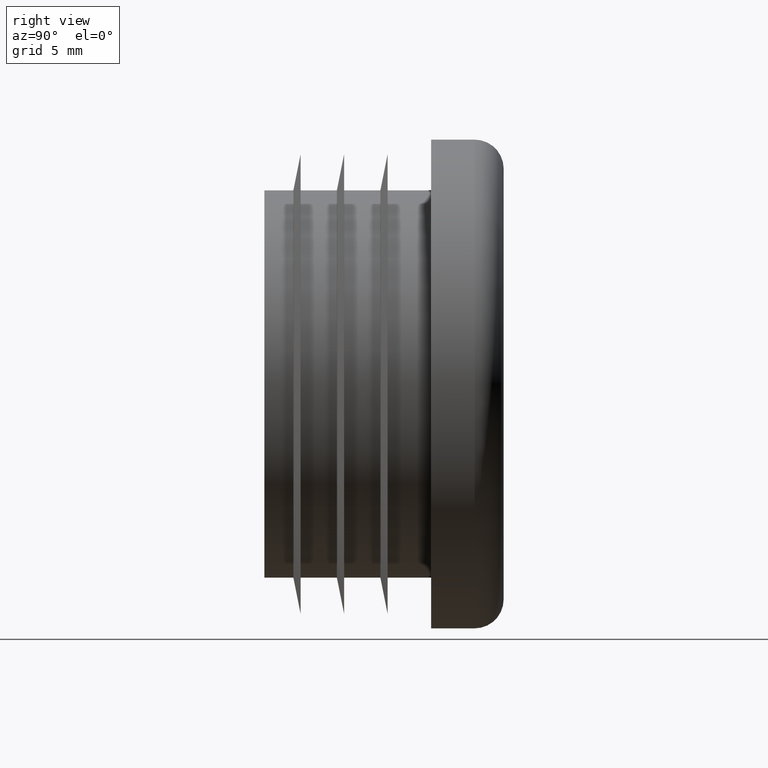
[diagram: clean part render]
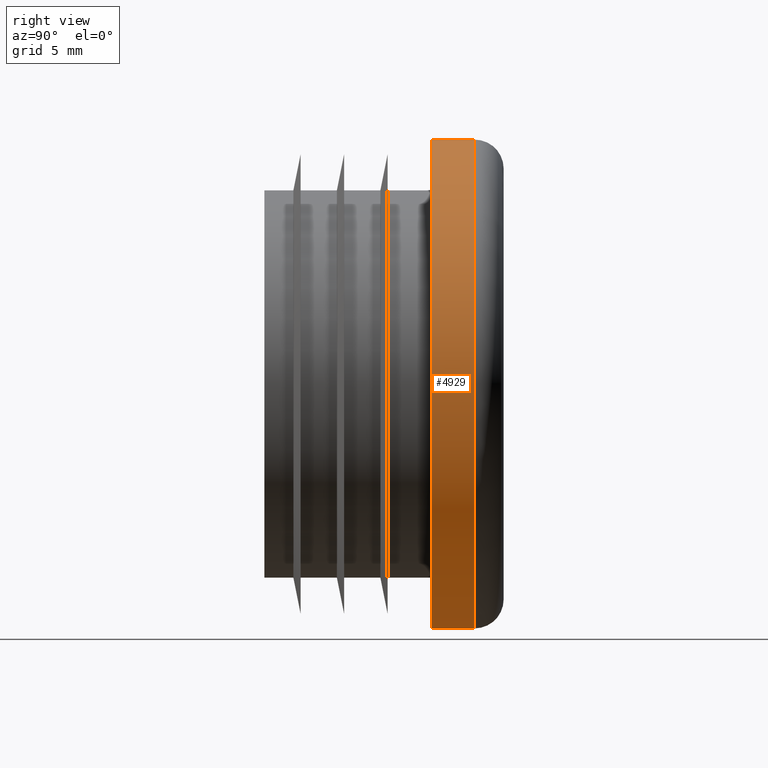
[diagram: same view with one face highlighted and labeled with its STEP entity id]
A machine part, right view. The second image highlights one B-rep face of the part: STEP entity #4929.
In plain terms, the highlighted cylindrical surface (partial cylindrical patch) has radius 16.85 mm, axis along (-0, -1, -0).
Its self-contained STEP definition (entity closure, byte-faithful):
#556 = VERTEX_POINT ( 'NONE', #3354 ) ;
#838 = ORIENTED_EDGE ( 'NONE', *, *, #8164, .T. ) ;
#977 = DIRECTION ( 'NONE',  ( -0.0000000000000000000, -1.000000000000000000, -0.0000000000000000000 ) ) ;
#988 = VERTEX_POINT ( 'NONE', #1777 ) ;
#1307 = ORIENTED_EDGE ( 'NONE', *, *, #6581, .T. ) ;
#1777 = CARTESIAN_POINT ( 'NONE',  ( 2.063529856563290200E-015, 3.000000000000000000, 16.85000000000000100 ) ) ;
#1904 = AXIS2_PLACEMENT_3D ( 'NONE', #7318, #6016, #6683 ) ;
#2622 = VECTOR ( 'NONE', #6703, 1000.000000000000000 ) ;
#2882 = CARTESIAN_POINT ( 'NONE',  ( 0.0000000000000000000, 0.0000000000000000000, 0.0000000000000000000 ) ) ;
#3354 = CARTESIAN_POINT ( 'NONE',  ( 2.063529856563290200E-015, 0.0000000000000000000, 16.85000000000000100 ) ) ;
#3629 = DIRECTION ( 'NONE',  ( 0.0000000000000000000, 0.0000000000000000000, 1.000000000000000000 ) ) ;
#3872 = CARTESIAN_POINT ( 'NONE',  ( 0.0000000000000000000, 3.000000000000000000, -16.85000000000000100 ) ) ;
#3903 = CIRCLE ( 'NONE', #5106, 16.85000000000000100 ) ;
#3943 = EDGE_LOOP ( 'NONE', ( #4548, #838, #1307, #6128 ) ) ;
#4236 = CIRCLE ( 'NONE', #4329, 16.85000000000000100 ) ;
#4237 = CARTESIAN_POINT ( 'NONE',  ( 2.063529856563290200E-015, 5.000000000000000000, 16.85000000000000100 ) ) ;
#4329 = AXIS2_PLACEMENT_3D ( 'NONE', #2882, #7766, #3629 ) ;
#4548 = ORIENTED_EDGE ( 'NONE', *, *, #7948, .T. ) ;
#4929 = ADVANCED_FACE ( 'NONE', ( #7610 ), #5866, .T. ) ;
#5106 = AXIS2_PLACEMENT_3D ( 'NONE', #5410, #977, #6093 ) ;
#5410 = CARTESIAN_POINT ( 'NONE',  ( 0.0000000000000000000, 3.000000000000000000, 0.0000000000000000000 ) ) ;
#5866 = CYLINDRICAL_SURFACE ( 'NONE', #1904, 16.85000000000000100 ) ;
#6016 = DIRECTION ( 'NONE',  ( -0.0000000000000000000, -1.000000000000000000, -0.0000000000000000000 ) ) ;
#6035 = CARTESIAN_POINT ( 'NONE',  ( 0.0000000000000000000, 5.000000000000000000, -16.85000000000000100 ) ) ;
#6093 = DIRECTION ( 'NONE',  ( 0.0000000000000000000, 0.0000000000000000000, 1.000000000000000000 ) ) ;
#6128 = ORIENTED_EDGE ( 'NONE', *, *, #7891, .F. ) ;
#6232 = LINE ( 'NONE', #6035, #2622 ) ;
#6531 = VECTOR ( 'NONE', #8293, 1000.000000000000000 ) ;
#6581 = EDGE_CURVE ( 'NONE', #556, #7685, #4236, .T. ) ;
#6683 = DIRECTION ( 'NONE',  ( 0.0000000000000000000, 0.0000000000000000000, -1.000000000000000000 ) ) ;
#6703 = DIRECTION ( 'NONE',  ( -0.0000000000000000000, -1.000000000000000000, -0.0000000000000000000 ) ) ;
#7318 = CARTESIAN_POINT ( 'NONE',  ( 0.0000000000000000000, 5.000000000000000000, 0.0000000000000000000 ) ) ;
#7610 = FACE_OUTER_BOUND ( 'NONE', #3943, .T. ) ;
#7685 = VERTEX_POINT ( 'NONE', #7801 ) ;
#7766 = DIRECTION ( 'NONE',  ( 0.0000000000000000000, 1.000000000000000000, 0.0000000000000000000 ) ) ;
#7801 = CARTESIAN_POINT ( 'NONE',  ( 0.0000000000000000000, 0.0000000000000000000, -16.85000000000000100 ) ) ;
#7852 = VERTEX_POINT ( 'NONE', #3872 ) ;
#7891 = EDGE_CURVE ( 'NONE', #7852, #7685, #6232, .T. ) ;
#7948 = EDGE_CURVE ( 'NONE', #7852, #988, #3903, .T. ) ;
#8164 = EDGE_CURVE ( 'NONE', #988, #556, #8252, .T. ) ;
#8252 = LINE ( 'NONE', #4237, #6531 ) ;
#8293 = DIRECTION ( 'NONE',  ( -0.0000000000000000000, -1.000000000000000000, -0.0000000000000000000 ) ) ;